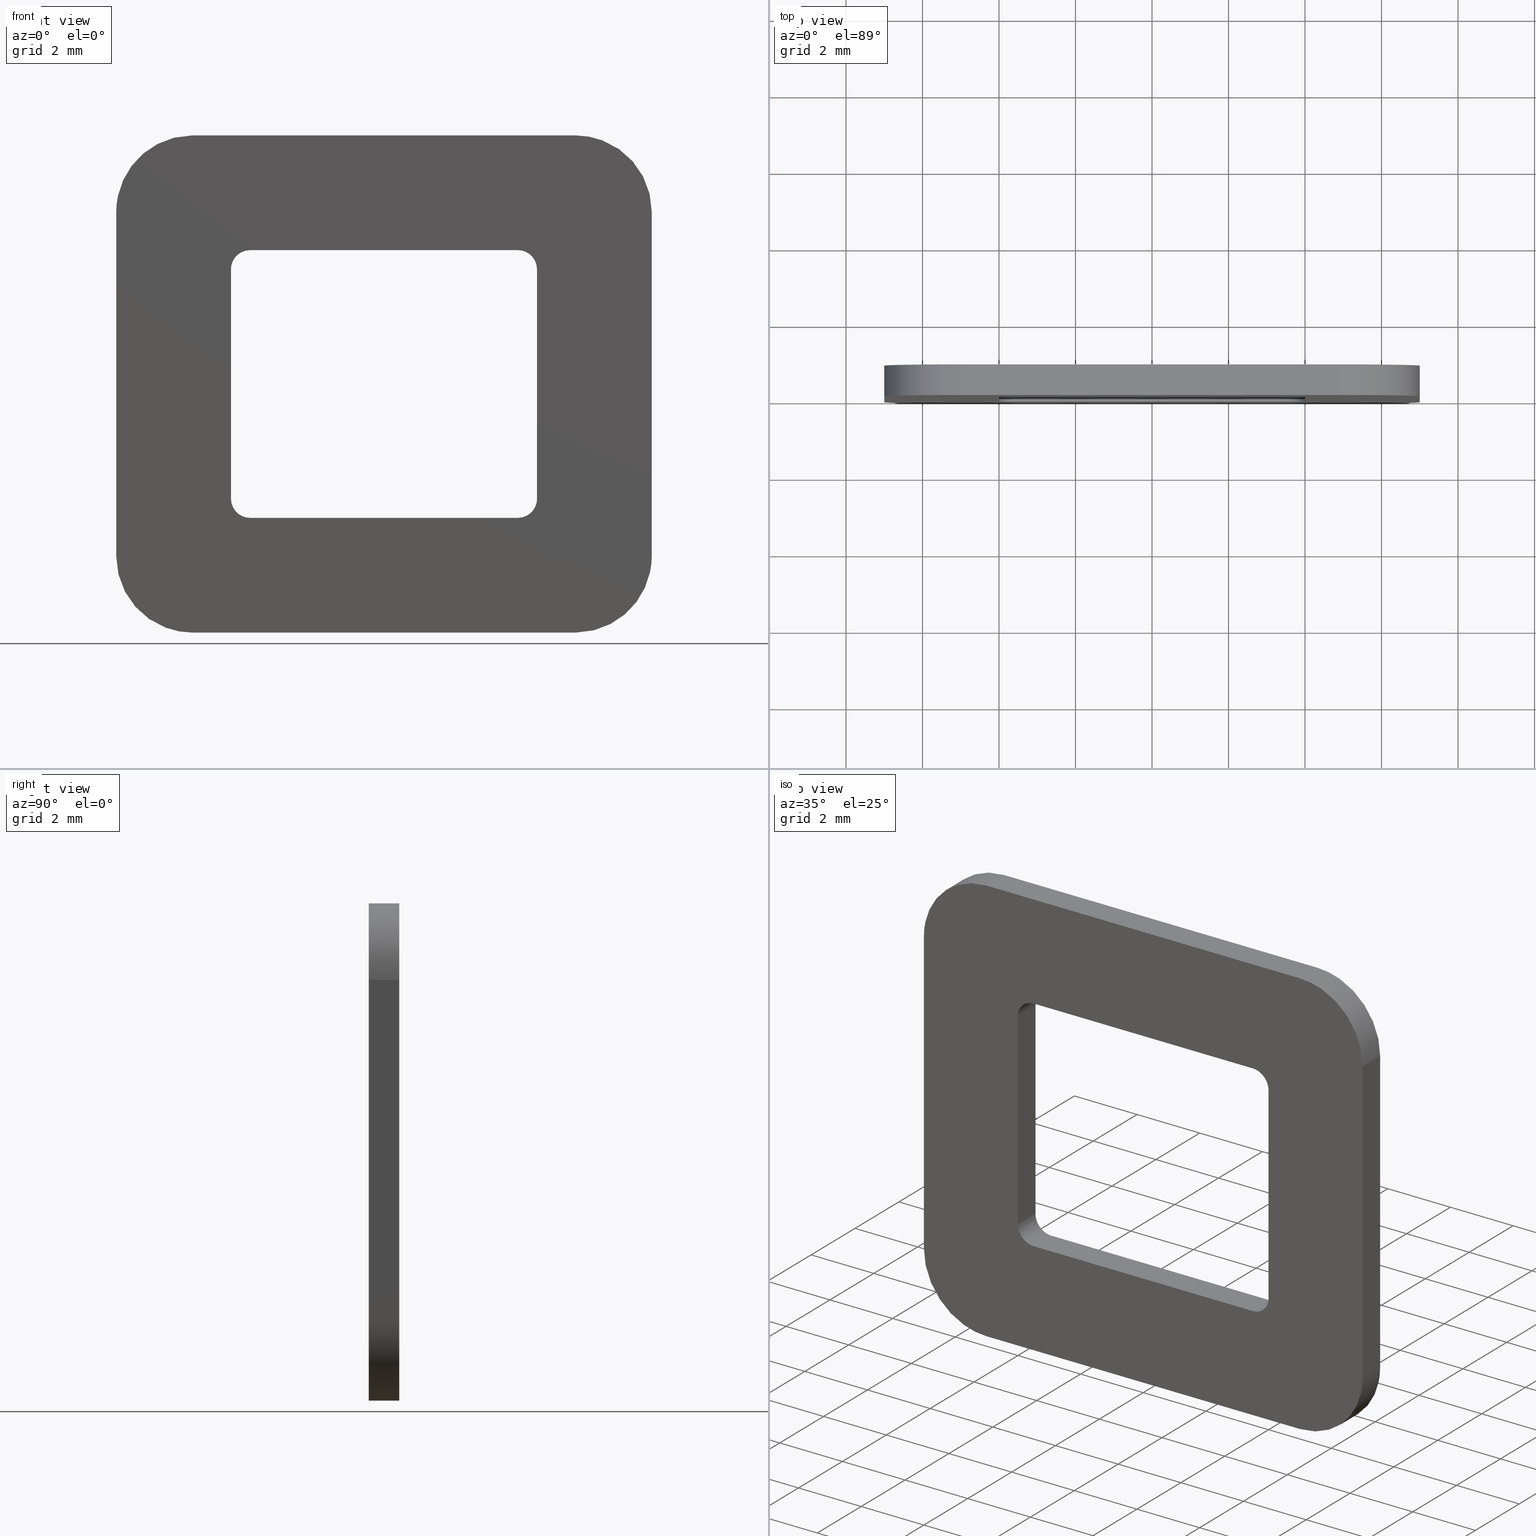
[diagram: canonical four-view strip — front | top / right | iso, engineering-drawing reading convention]
A machine part, canonical four-view strip (front | top / right | iso — engineering-drawing reading convention). The complete STEP part file that produces these views, byte-faithful:
ISO-10303-21;
HEADER;
/****************************************************************
 * Generated by software with PDE/Lib inside                    *
 * PDElib Version 4.4.1-0003, patched  Thursday August 19 11:58 *
 * International Technegroup Inc. (www.iti-oh.com)              *
 ****************************************************************/
FILE_DESCRIPTION((''),'2;1');
FILE_NAME('','2005-07-15T15:33:39',(''),(''),'','CADfix','');
FILE_SCHEMA(('AUTOMOTIVE_DESIGN'));
ENDSEC;
DATA;
#5=APPLICATION_CONTEXT('automotive design');
#6=APPLICATION_PROTOCOL_DEFINITION('Draft International Standard','automotive_design',1998,#5);
#7=PRODUCT_CONTEXT('None',#5,'mechanical');
#8=PRODUCT('spacer','','None',(#7));
#9=PRODUCT_RELATED_PRODUCT_CATEGORY('part','description',(#8));
#10=PRODUCT_DEFINITION_FORMATION('None','None',#8);
#11=PRODUCT_DEFINITION_CONTEXT('part definition',#5,'design');
#12=PRODUCT_DEFINITION('None','None',#10,#11);
#18=(NAMED_UNIT(*)PLANE_ANGLE_UNIT()SI_UNIT($,.RADIAN.));
#19=DIMENSIONAL_EXPONENTS(0.0,0.0,0.0,0.0,0.0,0.0,0.0);
#20=PLANE_ANGLE_MEASURE_WITH_UNIT(PLANE_ANGLE_MEASURE(0.017453292500000),#18);
#24=(CONVERSION_BASED_UNIT('DEGREE',#20)NAMED_UNIT(#19)PLANE_ANGLE_UNIT());
#28=(NAMED_UNIT(*)SI_UNIT($,.STERADIAN.)SOLID_ANGLE_UNIT());
#32=(LENGTH_UNIT()NAMED_UNIT(*)SI_UNIT(.MILLI.,.METRE.));
#34=UNCERTAINTY_MEASURE_WITH_UNIT(LENGTH_MEASURE(0.001000000000000),#32,'DISTANCE_ACCURACY_VALUE','');
#36=(GEOMETRIC_REPRESENTATION_CONTEXT(3)GLOBAL_UNCERTAINTY_ASSIGNED_CONTEXT((#34))GLOBAL_UNIT_ASSIGNED_CONTEXT((#24,#28,#32))REPRESENTATION_CONTEXT('None','None'));
#37=AXIS2_PLACEMENT_3D('',#38,#39,#40);
#38=CARTESIAN_POINT('',(0.0,0.0,0.0));
#39=DIRECTION('',(0.0,0.0,1.0));
#40=DIRECTION('',(1.0,0.0,0.0));
#41=ADVANCED_BREP_SHAPE_REPRESENTATION('',(#37,#761),#36);
#42=PRODUCT_DEFINITION_SHAPE('','',#12);
#43=SHAPE_DEFINITION_REPRESENTATION(#42,#41);
#44=CARTESIAN_POINT('',(-3.849649985124956,-0.039960148299441,3.500000000000000));
#45=CARTESIAN_POINT('',(3.849650146699670,-0.039960148299441,3.500000000000000));
#46=CARTESIAN_POINT('',(-3.849649985124956,0.839963169757243,3.500000000000000));
#47=CARTESIAN_POINT('',(3.849650146699670,0.839963169757243,3.500000000000000));
#48=B_SPLINE_SURFACE_WITH_KNOTS('',1,1,((#44,#46),(#45,#47)),.UNSPECIFIED.,.F.,.F.,.U.,(2,2),(2,2),(0.0,7.699300131824627),(0.041708334948495,0.958291687403247),.UNSPECIFIED.);
#49=CARTESIAN_POINT('',(3.499999973820085,0.0,3.500000000000000));
#50=VERTEX_POINT('',#49);
#51=CARTESIAN_POINT('',(-3.500000000000000,0.0,3.500000000000000));
#52=VERTEX_POINT('',#51);
#53=CARTESIAN_POINT('',(3.499999973820085,0.0,3.500000000000000));
#54=CARTESIAN_POINT('',(-3.500000000000000,0.0,3.500000000000000));
#55=QUASI_UNIFORM_CURVE('',1,(#53,#54),.UNSPECIFIED.,.F.,.U.);
#56=EDGE_CURVE('',#50,#52,#55,.T.);
#57=ORIENTED_EDGE('',*,*,#56,.T.);
#58=CARTESIAN_POINT('',(-3.500000000000000,0.800003000000000,3.500000000000000));
#59=VERTEX_POINT('',#58);
#60=CARTESIAN_POINT('',(-3.500000000000000,0.800003000000000,3.500000000000000));
#61=CARTESIAN_POINT('',(-3.500000000000000,0.0,3.500000000000000));
#62=QUASI_UNIFORM_CURVE('',1,(#60,#61),.UNSPECIFIED.,.F.,.U.);
#63=EDGE_CURVE('',#59,#52,#62,.T.);
#64=ORIENTED_EDGE('',*,*,#63,.F.);
#65=CARTESIAN_POINT('',(3.499999973820085,0.800003000000049,3.500000000000000));
#66=VERTEX_POINT('',#65);
#67=CARTESIAN_POINT('',(3.499999973820085,0.800003000000049,3.500000000000000));
#68=CARTESIAN_POINT('',(-3.500000000000000,0.800003000000000,3.500000000000000));
#69=QUASI_UNIFORM_CURVE('',1,(#67,#68),.UNSPECIFIED.,.F.,.U.);
#70=EDGE_CURVE('',#66,#59,#69,.T.);
#71=ORIENTED_EDGE('',*,*,#70,.F.);
#72=CARTESIAN_POINT('',(3.499999973820085,0.800003000000049,3.500000000000000));
#73=CARTESIAN_POINT('',(3.499999973820085,0.0,3.500000000000000));
#74=QUASI_UNIFORM_CURVE('',1,(#72,#73),.UNSPECIFIED.,.F.,.U.);
#75=EDGE_CURVE('',#66,#50,#74,.T.);
#76=ORIENTED_EDGE('',*,*,#75,.T.);
#77=EDGE_LOOP('',(#57,#64,#71,#76));
#78=FACE_OUTER_BOUND('',#77,.T.);
#79=ADVANCED_FACE('',(#78),#48,.F.);
#80=CARTESIAN_POINT('',(3.478190306317332,0.820003075000050,3.499524110790929));
#81=CARTESIAN_POINT('',(3.478190306317332,-0.020500076875001,3.499524110790929));
#82=CARTESIAN_POINT('',(4.038030132229519,0.820003075000050,3.523967245467991));
#83=CARTESIAN_POINT('',(4.038030132229519,-0.020500076875001,3.523967245467991));
#84=CARTESIAN_POINT('',(3.998771456615960,0.820003075000050,2.964970953978237));
#85=CARTESIAN_POINT('',(3.998771456615960,-0.020500076875001,2.964970953978237));
#93=(BOUNDED_SURFACE()B_SPLINE_SURFACE(1,2,((#80,#82,#84),(#81,#83,#85)),.UNSPECIFIED.,.F.,.F.,.U.)B_SPLINE_SURFACE_WITH_KNOTS((2,2),(3,3),(0.0,1.0),(0.0,0.994386594966985),.UNSPECIFIED.)GEOMETRIC_REPRESENTATION_ITEM()RATIONAL_B_SPLINE_SURFACE(((1.0,0.664513898535122,0.996233561259061),(1.0,0.664513898535122,0.996233561259061)))REPRESENTATION_ITEM('')SURFACE());
#94=CARTESIAN_POINT('',(4.0,0.0,3.0));
#95=VERTEX_POINT('',#94);
#96=CARTESIAN_POINT('',(4.0,0.0,3.0));
#97=CARTESIAN_POINT('',(4.000000000000001,0.0,3.207106788854468));
#98=CARTESIAN_POINT('',(3.853553381337276,0.0,3.353553399849271));
#99=CARTESIAN_POINT('',(3.707106762674552,0.0,3.500000010844076));
#100=CARTESIAN_POINT('',(3.499999973820085,0.0,3.500000000000000));
#108=(BOUNDED_CURVE()B_SPLINE_CURVE(2,(#96,#97,#98,#99,#100),.UNSPECIFIED.,.F.,.U.)B_SPLINE_CURVE_WITH_KNOTS((3,2,3),(0.0,0.500000000000000,1.0),.UNSPECIFIED.)CURVE()GEOMETRIC_REPRESENTATION_ITEM()RATIONAL_B_SPLINE_CURVE((1.0,0.923879527501977,1.0,0.923879527501977,1.0))REPRESENTATION_ITEM(''));
#109=EDGE_CURVE('',#95,#50,#108,.T.);
#110=ORIENTED_EDGE('',*,*,#109,.T.);
#111=ORIENTED_EDGE('',*,*,#75,.F.);
#112=CARTESIAN_POINT('',(4.0,0.800003000000049,3.0));
#113=VERTEX_POINT('',#112);
#114=CARTESIAN_POINT('',(4.0,0.800003000000049,3.0));
#115=CARTESIAN_POINT('',(4.000000000000001,0.800003000000049,3.207106788854468));
#116=CARTESIAN_POINT('',(3.853553381337276,0.800003000000049,3.353553399849271));
#117=CARTESIAN_POINT('',(3.707106762674552,0.800003000000049,3.500000010844076));
#118=CARTESIAN_POINT('',(3.499999973820085,0.800003000000049,3.500000000000000));
#126=(BOUNDED_CURVE()B_SPLINE_CURVE(2,(#114,#115,#116,#117,#118),.UNSPECIFIED.,.F.,.U.)B_SPLINE_CURVE_WITH_KNOTS((3,2,3),(0.0,0.500000000000000,1.0),.UNSPECIFIED.)CURVE()GEOMETRIC_REPRESENTATION_ITEM()RATIONAL_B_SPLINE_CURVE((1.0,0.923879527501977,1.0,0.923879527501977,1.0))REPRESENTATION_ITEM(''));
#127=EDGE_CURVE('',#113,#66,#126,.T.);
#128=ORIENTED_EDGE('',*,*,#127,.F.);
#129=CARTESIAN_POINT('',(4.0,0.800003000000049,3.0));
#130=CARTESIAN_POINT('',(4.0,0.0,3.0));
#131=QUASI_UNIFORM_CURVE('',1,(#129,#130),.UNSPECIFIED.,.F.,.U.);
#132=EDGE_CURVE('',#113,#95,#131,.T.);
#133=ORIENTED_EDGE('',*,*,#132,.T.);
#134=EDGE_LOOP('',(#110,#111,#128,#133));
#135=FACE_OUTER_BOUND('',#134,.T.);
#136=ADVANCED_FACE('',(#135),#93,.F.);
#137=CARTESIAN_POINT('',(4.0,-0.039960148299441,3.299699988370836));
#138=CARTESIAN_POINT('',(4.0,-0.039960148299441,-3.299700149303377));
#139=CARTESIAN_POINT('',(4.0,0.839963169757243,3.299699988370836));
#140=CARTESIAN_POINT('',(4.0,0.839963169757243,-3.299700149303377));
#141=B_SPLINE_SURFACE_WITH_KNOTS('',1,1,((#137,#139),(#138,#140)),.UNSPECIFIED.,.F.,.F.,.U.,(2,2),(2,2),(0.0,6.599400137674213),(0.041708334948495,0.958291687403247),.UNSPECIFIED.);
#142=CARTESIAN_POINT('',(4.0,0.0,-3.0));
#143=VERTEX_POINT('',#142);
#144=CARTESIAN_POINT('',(4.0,0.0,-3.0));
#145=CARTESIAN_POINT('',(4.0,0.0,3.0));
#146=QUASI_UNIFORM_CURVE('',1,(#144,#145),.UNSPECIFIED.,.F.,.U.);
#147=EDGE_CURVE('',#143,#95,#146,.T.);
#148=ORIENTED_EDGE('',*,*,#147,.T.);
#149=ORIENTED_EDGE('',*,*,#132,.F.);
#150=CARTESIAN_POINT('',(4.0,0.800003000000049,-3.0));
#151=VERTEX_POINT('',#150);
#152=CARTESIAN_POINT('',(4.0,0.800003000000049,-3.0));
#153=CARTESIAN_POINT('',(4.0,0.800003000000049,3.0));
#154=QUASI_UNIFORM_CURVE('',1,(#152,#153),.UNSPECIFIED.,.F.,.U.);
#155=EDGE_CURVE('',#151,#113,#154,.T.);
#156=ORIENTED_EDGE('',*,*,#155,.F.);
#157=CARTESIAN_POINT('',(4.0,0.800003000000049,-3.0));
#158=CARTESIAN_POINT('',(4.0,0.0,-3.0));
#159=QUASI_UNIFORM_CURVE('',1,(#157,#158),.UNSPECIFIED.,.F.,.U.);
#160=EDGE_CURVE('',#151,#143,#159,.T.);
#161=ORIENTED_EDGE('',*,*,#160,.T.);
#162=EDGE_LOOP('',(#148,#149,#156,#161));
#163=FACE_OUTER_BOUND('',#162,.T.);
#164=ADVANCED_FACE('',(#163),#141,.F.);
#165=CARTESIAN_POINT('',(3.999524110790929,0.820003075000050,-2.978190306317332));
#166=CARTESIAN_POINT('',(3.999524110790929,-0.020500076875001,-2.978190306317332));
#167=CARTESIAN_POINT('',(4.023967245467992,0.820003075000050,-3.538030132229517));
#168=CARTESIAN_POINT('',(4.023967245467992,-0.020500076875001,-3.538030132229517));
#169=CARTESIAN_POINT('',(3.464970953978237,0.820003075000050,-3.498771456615957));
#170=CARTESIAN_POINT('',(3.464970953978237,-0.020500076875001,-3.498771456615957));
#178=(BOUNDED_SURFACE()B_SPLINE_SURFACE(1,2,((#165,#167,#169),(#166,#168,#170)),.UNSPECIFIED.,.F.,.F.,.U.)B_SPLINE_SURFACE_WITH_KNOTS((2,2),(3,3),(0.0,1.0),(0.0,0.994386594966985),.UNSPECIFIED.)GEOMETRIC_REPRESENTATION_ITEM()RATIONAL_B_SPLINE_SURFACE(((1.0,0.664513898535122,0.996233561259061),(1.0,0.664513898535122,0.996233561259061)))REPRESENTATION_ITEM('')SURFACE());
#179=CARTESIAN_POINT('',(3.500000000000000,0.0,-3.500000000000000));
#180=VERTEX_POINT('',#179);
#181=CARTESIAN_POINT('',(3.500000000000000,0.0,-3.500000000000000));
#182=CARTESIAN_POINT('',(4.000000000000000,0.0,-3.499999999999999));
#183=CARTESIAN_POINT('',(4.0,0.0,-3.0));
#191=(BOUNDED_CURVE()B_SPLINE_CURVE(2,(#181,#182,#183),.UNSPECIFIED.,.F.,.U.)CURVE()GEOMETRIC_REPRESENTATION_ITEM()QUASI_UNIFORM_CURVE()RATIONAL_B_SPLINE_CURVE((1.0,0.707106781186548,1.0))REPRESENTATION_ITEM(''));
#192=EDGE_CURVE('',#180,#143,#191,.T.);
#193=ORIENTED_EDGE('',*,*,#192,.T.);
#194=ORIENTED_EDGE('',*,*,#160,.F.);
#195=CARTESIAN_POINT('',(3.500000000000000,0.800003000000049,-3.500000000000000));
#196=VERTEX_POINT('',#195);
#197=CARTESIAN_POINT('',(3.500000000000000,0.800003000000049,-3.500000000000000));
#198=CARTESIAN_POINT('',(4.000000000000000,0.800003000000049,-3.499999999999999));
#199=CARTESIAN_POINT('',(4.0,0.800003000000049,-3.0));
#207=(BOUNDED_CURVE()B_SPLINE_CURVE(2,(#197,#198,#199),.UNSPECIFIED.,.F.,.U.)CURVE()GEOMETRIC_REPRESENTATION_ITEM()QUASI_UNIFORM_CURVE()RATIONAL_B_SPLINE_CURVE((1.0,0.707106781186548,1.0))REPRESENTATION_ITEM(''));
#208=EDGE_CURVE('',#196,#151,#207,.T.);
#209=ORIENTED_EDGE('',*,*,#208,.F.);
#210=CARTESIAN_POINT('',(3.500000000000000,0.800003000000049,-3.500000000000000));
#211=CARTESIAN_POINT('',(3.500000000000000,0.0,-3.500000000000000));
#212=QUASI_UNIFORM_CURVE('',1,(#210,#211),.UNSPECIFIED.,.F.,.U.);
#213=EDGE_CURVE('',#196,#180,#212,.T.);
#214=ORIENTED_EDGE('',*,*,#213,.T.);
#215=EDGE_LOOP('',(#193,#194,#209,#214));
#216=FACE_OUTER_BOUND('',#215,.T.);
#217=ADVANCED_FACE('',(#216),#178,.F.);
#218=CARTESIAN_POINT('',(3.849649985996746,-0.039960148299441,-3.500000000000000));
#219=CARTESIAN_POINT('',(-3.849650165024716,-0.039960148299441,-3.500000000000000));
#220=CARTESIAN_POINT('',(3.849649985996746,0.839963169757243,-3.500000000000000));
#221=CARTESIAN_POINT('',(-3.849650165024716,0.839963169757243,-3.500000000000000));
#222=B_SPLINE_SURFACE_WITH_KNOTS('',1,1,((#218,#220),(#219,#221)),.UNSPECIFIED.,.F.,.F.,.U.,(2,2),(2,2),(0.0,7.699300151021462),(0.041708334948495,0.958291687403247),.UNSPECIFIED.);
#223=CARTESIAN_POINT('',(-3.499999991273340,0.0,-3.500000000000000));
#224=VERTEX_POINT('',#223);
#225=CARTESIAN_POINT('',(-3.499999991273340,0.0,-3.500000000000000));
#226=CARTESIAN_POINT('',(3.500000000000000,0.0,-3.500000000000000));
#227=QUASI_UNIFORM_CURVE('',1,(#225,#226),.UNSPECIFIED.,.F.,.U.);
#228=EDGE_CURVE('',#224,#180,#227,.T.);
#229=ORIENTED_EDGE('',*,*,#228,.T.);
#230=ORIENTED_EDGE('',*,*,#213,.F.);
#231=CARTESIAN_POINT('',(-3.499999991273340,0.800003000000049,-3.500000000000000));
#232=VERTEX_POINT('',#231);
#233=CARTESIAN_POINT('',(-3.499999991273340,0.800003000000049,-3.500000000000000));
#234=CARTESIAN_POINT('',(3.500000000000000,0.800003000000049,-3.500000000000000));
#235=QUASI_UNIFORM_CURVE('',1,(#233,#234),.UNSPECIFIED.,.F.,.U.);
#236=EDGE_CURVE('',#232,#196,#235,.T.);
#237=ORIENTED_EDGE('',*,*,#236,.F.);
#238=CARTESIAN_POINT('',(-3.499999991273340,0.800003000000049,-3.500000000000000));
#239=CARTESIAN_POINT('',(-3.499999991273340,0.0,-3.500000000000000));
#240=QUASI_UNIFORM_CURVE('',1,(#238,#239),.UNSPECIFIED.,.F.,.U.);
#241=EDGE_CURVE('',#232,#224,#240,.T.);
#242=ORIENTED_EDGE('',*,*,#241,.T.);
#243=EDGE_LOOP('',(#229,#230,#237,#242));
#244=FACE_OUTER_BOUND('',#243,.T.);
#245=ADVANCED_FACE('',(#244),#222,.F.);
#246=CARTESIAN_POINT('',(-3.478190306317332,0.820003075000050,-3.499524110790929));
#247=CARTESIAN_POINT('',(-3.478190306317332,-0.020500076875001,-3.499524110790929));
#248=CARTESIAN_POINT('',(-4.038030132229519,0.820003075000050,-3.523967245467991));
#249=CARTESIAN_POINT('',(-4.038030132229519,-0.020500076875001,-3.523967245467991));
#250=CARTESIAN_POINT('',(-3.998771456615960,0.820003075000050,-2.964970953978237));
#251=CARTESIAN_POINT('',(-3.998771456615960,-0.020500076875001,-2.964970953978237));
#259=(BOUNDED_SURFACE()B_SPLINE_SURFACE(1,2,((#246,#248,#250),(#247,#249,#251)),.UNSPECIFIED.,.F.,.F.,.U.)B_SPLINE_SURFACE_WITH_KNOTS((2,2),(3,3),(0.0,1.0),(0.0,0.994386594966985),.UNSPECIFIED.)GEOMETRIC_REPRESENTATION_ITEM()RATIONAL_B_SPLINE_SURFACE(((1.0,0.664513898535122,0.996233561259061),(1.0,0.664513898535122,0.996233561259061)))REPRESENTATION_ITEM('')SURFACE());
#260=CARTESIAN_POINT('',(-4.0,0.0,-3.0));
#261=VERTEX_POINT('',#260);
#262=CARTESIAN_POINT('',(-4.0,0.0,-3.0));
#263=CARTESIAN_POINT('',(-4.0,0.0,-3.207106783742527));
#264=CARTESIAN_POINT('',(-3.853553387507934,0.0,-3.353553393678614));
#265=CARTESIAN_POINT('',(-3.707106775015868,0.0,-3.500000003614701));
#266=CARTESIAN_POINT('',(-3.499999991273340,0.0,-3.500000000000000));
#274=(BOUNDED_CURVE()B_SPLINE_CURVE(2,(#262,#263,#264,#265,#266),.UNSPECIFIED.,.F.,.U.)B_SPLINE_CURVE_WITH_KNOTS((3,2,3),(0.0,0.500000000000000,1.0),.UNSPECIFIED.)CURVE()GEOMETRIC_REPRESENTATION_ITEM()RATIONAL_B_SPLINE_CURVE((1.0,0.923879530841513,1.0,0.923879530841513,1.0))REPRESENTATION_ITEM(''));
#275=EDGE_CURVE('',#261,#224,#274,.T.);
#276=ORIENTED_EDGE('',*,*,#275,.T.);
#277=ORIENTED_EDGE('',*,*,#241,.F.);
#278=CARTESIAN_POINT('',(-4.0,0.800003000000049,-3.0));
#279=VERTEX_POINT('',#278);
#280=CARTESIAN_POINT('',(-4.0,0.800003000000049,-3.0));
#281=CARTESIAN_POINT('',(-4.0,0.800003000000049,-3.207106783742527));
#282=CARTESIAN_POINT('',(-3.853553387507934,0.800003000000049,-3.353553393678614));
#283=CARTESIAN_POINT('',(-3.707106775015868,0.800003000000049,-3.500000003614701));
#284=CARTESIAN_POINT('',(-3.499999991273340,0.800003000000049,-3.500000000000000));
#292=(BOUNDED_CURVE()B_SPLINE_CURVE(2,(#280,#281,#282,#283,#284),.UNSPECIFIED.,.F.,.U.)B_SPLINE_CURVE_WITH_KNOTS((3,2,3),(0.0,0.500000000000000,1.0),.UNSPECIFIED.)CURVE()GEOMETRIC_REPRESENTATION_ITEM()RATIONAL_B_SPLINE_CURVE((1.0,0.923879530841513,1.0,0.923879530841513,1.0))REPRESENTATION_ITEM(''));
#293=EDGE_CURVE('',#279,#232,#292,.T.);
#294=ORIENTED_EDGE('',*,*,#293,.F.);
#295=CARTESIAN_POINT('',(-4.0,0.800003000000049,-3.0));
#296=CARTESIAN_POINT('',(-4.0,0.0,-3.0));
#297=QUASI_UNIFORM_CURVE('',1,(#295,#296),.UNSPECIFIED.,.F.,.U.);
#298=EDGE_CURVE('',#279,#261,#297,.T.);
#299=ORIENTED_EDGE('',*,*,#298,.T.);
#300=EDGE_LOOP('',(#276,#277,#294,#299));
#301=FACE_OUTER_BOUND('',#300,.T.);
#302=ADVANCED_FACE('',(#301),#259,.F.);
#303=CARTESIAN_POINT('',(-4.0,-0.039960148299441,-3.299699988370836));
#304=CARTESIAN_POINT('',(-4.0,-0.039960148299441,3.299700149303377));
#305=CARTESIAN_POINT('',(-4.0,0.839963169757243,-3.299699988370836));
#306=CARTESIAN_POINT('',(-4.0,0.839963169757243,3.299700149303377));
#307=B_SPLINE_SURFACE_WITH_KNOTS('',1,1,((#303,#305),(#304,#306)),.UNSPECIFIED.,.F.,.F.,.U.,(2,2),(2,2),(0.0,6.599400137674213),(0.041708334948495,0.958291687403247),.UNSPECIFIED.);
#308=CARTESIAN_POINT('',(-4.0,0.0,3.0));
#309=VERTEX_POINT('',#308);
#310=CARTESIAN_POINT('',(-4.0,0.0,3.0));
#311=CARTESIAN_POINT('',(-4.0,0.0,-3.0));
#312=QUASI_UNIFORM_CURVE('',1,(#310,#311),.UNSPECIFIED.,.F.,.U.);
#313=EDGE_CURVE('',#309,#261,#312,.T.);
#314=ORIENTED_EDGE('',*,*,#313,.T.);
#315=ORIENTED_EDGE('',*,*,#298,.F.);
#316=CARTESIAN_POINT('',(-4.0,0.800003000000049,3.0));
#317=VERTEX_POINT('',#316);
#318=CARTESIAN_POINT('',(-4.0,0.800003000000049,3.0));
#319=CARTESIAN_POINT('',(-4.0,0.800003000000049,-3.0));
#320=QUASI_UNIFORM_CURVE('',1,(#318,#319),.UNSPECIFIED.,.F.,.U.);
#321=EDGE_CURVE('',#317,#279,#320,.T.);
#322=ORIENTED_EDGE('',*,*,#321,.F.);
#323=CARTESIAN_POINT('',(-4.0,0.800003000000049,3.0));
#324=CARTESIAN_POINT('',(-4.0,0.0,3.0));
#325=QUASI_UNIFORM_CURVE('',1,(#323,#324),.UNSPECIFIED.,.F.,.U.);
#326=EDGE_CURVE('',#317,#309,#325,.T.);
#327=ORIENTED_EDGE('',*,*,#326,.T.);
#328=EDGE_LOOP('',(#314,#315,#322,#327));
#329=FACE_OUTER_BOUND('',#328,.T.);
#330=ADVANCED_FACE('',(#329),#307,.F.);
#331=CARTESIAN_POINT('',(-3.999524110790929,0.820003075000050,2.978190306317332));
#332=CARTESIAN_POINT('',(-3.999524110790929,-0.020500076875001,2.978190306317332));
#333=CARTESIAN_POINT('',(-4.023967245467992,0.820003075000050,3.538030132229517));
#334=CARTESIAN_POINT('',(-4.023967245467992,-0.020500076875001,3.538030132229517));
#335=CARTESIAN_POINT('',(-3.464970953978237,0.820003075000050,3.498771456615957));
#336=CARTESIAN_POINT('',(-3.464970953978237,-0.020500076875001,3.498771456615957));
#344=(BOUNDED_SURFACE()B_SPLINE_SURFACE(1,2,((#331,#333,#335),(#332,#334,#336)),.UNSPECIFIED.,.F.,.F.,.U.)B_SPLINE_SURFACE_WITH_KNOTS((2,2),(3,3),(0.0,1.0),(0.0,0.994386594966985),.UNSPECIFIED.)GEOMETRIC_REPRESENTATION_ITEM()RATIONAL_B_SPLINE_SURFACE(((1.0,0.664513898535122,0.996233561259061),(1.0,0.664513898535122,0.996233561259061)))REPRESENTATION_ITEM('')SURFACE());
#345=CARTESIAN_POINT('',(-3.500000000000000,0.0,3.500000000000000));
#346=CARTESIAN_POINT('',(-4.000000000000000,0.0,3.499999999999999));
#347=CARTESIAN_POINT('',(-4.0,0.0,3.0));
#355=(BOUNDED_CURVE()B_SPLINE_CURVE(2,(#345,#346,#347),.UNSPECIFIED.,.F.,.U.)CURVE()GEOMETRIC_REPRESENTATION_ITEM()QUASI_UNIFORM_CURVE()RATIONAL_B_SPLINE_CURVE((1.0,0.707106781186548,1.0))REPRESENTATION_ITEM(''));
#356=EDGE_CURVE('',#52,#309,#355,.T.);
#357=ORIENTED_EDGE('',*,*,#356,.T.);
#358=ORIENTED_EDGE('',*,*,#326,.F.);
#359=CARTESIAN_POINT('',(-3.500000000000000,0.800003000000000,3.500000000000000));
#360=CARTESIAN_POINT('',(-4.000000000000000,0.800003000000049,3.499999999999999));
#361=CARTESIAN_POINT('',(-4.0,0.800003000000049,3.0));
#369=(BOUNDED_CURVE()B_SPLINE_CURVE(2,(#359,#360,#361),.UNSPECIFIED.,.F.,.U.)CURVE()GEOMETRIC_REPRESENTATION_ITEM()QUASI_UNIFORM_CURVE()RATIONAL_B_SPLINE_CURVE((1.0,0.707106781186548,1.0))REPRESENTATION_ITEM(''));
#370=EDGE_CURVE('',#59,#317,#369,.T.);
#371=ORIENTED_EDGE('',*,*,#370,.F.);
#372=ORIENTED_EDGE('',*,*,#63,.T.);
#373=EDGE_LOOP('',(#357,#358,#371,#372));
#374=FACE_OUTER_BOUND('',#373,.T.);
#375=ADVANCED_FACE('',(#374),#344,.F.);
#376=CARTESIAN_POINT('',(-7.699299972865286,0.0,7.149349974803479));
#377=CARTESIAN_POINT('',(7.699300348374547,0.0,7.149349974803479));
#378=CARTESIAN_POINT('',(-7.699299972865286,0.0,-7.149350323490651));
#379=CARTESIAN_POINT('',(7.699300348374547,0.0,-7.149350323490651));
#380=B_SPLINE_SURFACE_WITH_KNOTS('',1,1,((#376,#378),(#377,#379)),.UNSPECIFIED.,.F.,.F.,.U.,(2,2),(2,2),(0.0,15.398600321239829),(0.0,14.298700298294129),.UNSPECIFIED.);
#381=CARTESIAN_POINT('',(-5.0,0.0,6.500000000000000));
#382=VERTEX_POINT('',#381);
#383=CARTESIAN_POINT('',(-7.0,0.0,4.500000000000000));
#384=VERTEX_POINT('',#383);
#385=CARTESIAN_POINT('',(-5.0,0.0,6.500000000000000));
#386=CARTESIAN_POINT('',(-6.999999999999999,0.0,6.500000000000001));
#387=CARTESIAN_POINT('',(-7.0,0.0,4.500000000000000));
#395=(BOUNDED_CURVE()B_SPLINE_CURVE(2,(#385,#386,#387),.UNSPECIFIED.,.F.,.U.)CURVE()GEOMETRIC_REPRESENTATION_ITEM()QUASI_UNIFORM_CURVE()RATIONAL_B_SPLINE_CURVE((1.0,0.707106781186548,1.0))REPRESENTATION_ITEM(''));
#396=EDGE_CURVE('',#382,#384,#395,.T.);
#397=ORIENTED_EDGE('',*,*,#396,.T.);
#398=CARTESIAN_POINT('',(-7.0,0.0,-4.500000000000000));
#399=VERTEX_POINT('',#398);
#400=CARTESIAN_POINT('',(-7.0,0.0,4.500000000000000));
#401=CARTESIAN_POINT('',(-7.0,0.0,-4.500000000000000));
#402=QUASI_UNIFORM_CURVE('',1,(#400,#401),.UNSPECIFIED.,.F.,.U.);
#403=EDGE_CURVE('',#384,#399,#402,.T.);
#404=ORIENTED_EDGE('',*,*,#403,.T.);
#405=CARTESIAN_POINT('',(-4.999999965093400,0.0,-6.500000000000000));
#406=VERTEX_POINT('',#405);
#407=CARTESIAN_POINT('',(-7.0,0.0,-4.500000000000000));
#408=CARTESIAN_POINT('',(-7.0,0.0,-5.328427134970096));
#409=CARTESIAN_POINT('',(-6.414213550031748,0.0,-5.914213574714442));
#410=CARTESIAN_POINT('',(-5.828427100063497,0.0,-6.500000014458787));
#411=CARTESIAN_POINT('',(-4.999999965093400,0.0,-6.499999999999999));
#419=(BOUNDED_CURVE()B_SPLINE_CURVE(2,(#407,#408,#409,#410,#411),.UNSPECIFIED.,.F.,.U.)B_SPLINE_CURVE_WITH_KNOTS((3,2,3),(0.0,0.500000000000000,1.0),.UNSPECIFIED.)CURVE()GEOMETRIC_REPRESENTATION_ITEM()RATIONAL_B_SPLINE_CURVE((1.0,0.923879530841515,1.0,0.923879530841515,1.0))REPRESENTATION_ITEM(''));
#420=EDGE_CURVE('',#399,#406,#419,.T.);
#421=ORIENTED_EDGE('',*,*,#420,.T.);
#422=CARTESIAN_POINT('',(5.0,0.0,-6.500000000000000));
#423=VERTEX_POINT('',#422);
#424=CARTESIAN_POINT('',(-4.999999965093400,0.0,-6.500000000000000));
#425=CARTESIAN_POINT('',(5.0,0.0,-6.500000000000000));
#426=QUASI_UNIFORM_CURVE('',1,(#424,#425),.UNSPECIFIED.,.F.,.U.);
#427=EDGE_CURVE('',#406,#423,#426,.T.);
#428=ORIENTED_EDGE('',*,*,#427,.T.);
#429=CARTESIAN_POINT('',(7.0,0.0,-4.500000000000000));
#430=VERTEX_POINT('',#429);
#431=CARTESIAN_POINT('',(5.0,0.0,-6.500000000000000));
#432=CARTESIAN_POINT('',(6.999999999999999,0.0,-6.500000000000001));
#433=CARTESIAN_POINT('',(7.0,0.0,-4.500000000000000));
#441=(BOUNDED_CURVE()B_SPLINE_CURVE(2,(#431,#432,#433),.UNSPECIFIED.,.F.,.U.)CURVE()GEOMETRIC_REPRESENTATION_ITEM()QUASI_UNIFORM_CURVE()RATIONAL_B_SPLINE_CURVE((1.0,0.707106781186548,1.0))REPRESENTATION_ITEM(''));
#442=EDGE_CURVE('',#423,#430,#441,.T.);
#443=ORIENTED_EDGE('',*,*,#442,.T.);
#444=CARTESIAN_POINT('',(7.0,0.0,4.500000000000000));
#445=VERTEX_POINT('',#444);
#446=CARTESIAN_POINT('',(7.0,0.0,-4.500000000000000));
#447=CARTESIAN_POINT('',(7.0,0.0,4.500000000000000));
#448=QUASI_UNIFORM_CURVE('',1,(#446,#447),.UNSPECIFIED.,.F.,.U.);
#449=EDGE_CURVE('',#430,#445,#448,.T.);
#450=ORIENTED_EDGE('',*,*,#449,.T.);
#451=CARTESIAN_POINT('',(4.999999895280270,0.0,6.500000000000000));
#452=VERTEX_POINT('',#451);
#453=CARTESIAN_POINT('',(7.0,0.0,4.500000000000000));
#454=CARTESIAN_POINT('',(7.000000000000001,0.0,5.328427155417889));
#455=CARTESIAN_POINT('',(6.414213525349081,0.0,5.914213599397109));
#456=CARTESIAN_POINT('',(5.828427050698159,0.0,6.500000043376331));
#457=CARTESIAN_POINT('',(4.999999895280271,0.0,6.499999999999997));
#465=(BOUNDED_CURVE()B_SPLINE_CURVE(2,(#453,#454,#455,#456,#457),.UNSPECIFIED.,.F.,.U.)B_SPLINE_CURVE_WITH_KNOTS((3,2,3),(0.0,0.500000000000000,1.0),.UNSPECIFIED.)CURVE()GEOMETRIC_REPRESENTATION_ITEM()RATIONAL_B_SPLINE_CURVE((1.0,0.923879527501974,1.0,0.923879527501974,1.0))REPRESENTATION_ITEM(''));
#466=EDGE_CURVE('',#445,#452,#465,.T.);
#467=ORIENTED_EDGE('',*,*,#466,.T.);
#468=CARTESIAN_POINT('',(4.999999895280270,0.0,6.500000000000000));
#469=CARTESIAN_POINT('',(-5.0,0.0,6.500000000000000));
#470=QUASI_UNIFORM_CURVE('',1,(#468,#469),.UNSPECIFIED.,.F.,.U.);
#471=EDGE_CURVE('',#452,#382,#470,.T.);
#472=ORIENTED_EDGE('',*,*,#471,.T.);
#473=EDGE_LOOP('',(#397,#404,#421,#428,#443,#450,#467,#472));
#474=FACE_OUTER_BOUND('',#473,.T.);
#475=ORIENTED_EDGE('',*,*,#356,.F.);
#476=ORIENTED_EDGE('',*,*,#56,.F.);
#477=ORIENTED_EDGE('',*,*,#109,.F.);
#478=ORIENTED_EDGE('',*,*,#147,.F.);
#479=ORIENTED_EDGE('',*,*,#192,.F.);
#480=ORIENTED_EDGE('',*,*,#228,.F.);
#481=ORIENTED_EDGE('',*,*,#275,.F.);
#482=ORIENTED_EDGE('',*,*,#313,.F.);
#483=EDGE_LOOP('',(#475,#476,#477,#478,#479,#480,#481,#482));
#484=FACE_BOUND('',#483,.T.);
#485=ADVANCED_FACE('',(#474,#484),#380,.F.);
#486=CARTESIAN_POINT('',(-7.699299972865286,0.800003000000000,7.149349974803479));
#487=CARTESIAN_POINT('',(7.699300348374547,0.800003000000000,7.149349974803479));
#488=CARTESIAN_POINT('',(-7.699299972865286,0.800003000000000,-7.149350323490651));
#489=CARTESIAN_POINT('',(7.699300348374547,0.800003000000000,-7.149350323490651));
#490=B_SPLINE_SURFACE_WITH_KNOTS('',1,1,((#486,#488),(#487,#489)),.UNSPECIFIED.,.F.,.F.,.U.,(2,2),(2,2),(0.0,15.398600321239829),(0.0,14.298700298294129),.UNSPECIFIED.);
#491=CARTESIAN_POINT('',(-5.0,0.800003000000049,6.500000000000000));
#492=VERTEX_POINT('',#491);
#493=CARTESIAN_POINT('',(-7.0,0.800003000000049,4.500000000000000));
#494=VERTEX_POINT('',#493);
#495=CARTESIAN_POINT('',(-5.0,0.800003000000049,6.500000000000000));
#496=CARTESIAN_POINT('',(-6.999999999999999,0.800003000000049,6.500000000000001));
#497=CARTESIAN_POINT('',(-7.0,0.800003000000049,4.500000000000000));
#505=(BOUNDED_CURVE()B_SPLINE_CURVE(2,(#495,#496,#497),.UNSPECIFIED.,.F.,.U.)CURVE()GEOMETRIC_REPRESENTATION_ITEM()QUASI_UNIFORM_CURVE()RATIONAL_B_SPLINE_CURVE((1.0,0.707106781186548,1.0))REPRESENTATION_ITEM(''));
#506=EDGE_CURVE('',#492,#494,#505,.T.);
#507=ORIENTED_EDGE('',*,*,#506,.F.);
#508=CARTESIAN_POINT('',(4.999999895280270,0.800003000000049,6.500000000000000));
#509=VERTEX_POINT('',#508);
#510=CARTESIAN_POINT('',(4.999999895280270,0.800003000000049,6.500000000000000));
#511=CARTESIAN_POINT('',(-5.0,0.800003000000049,6.500000000000000));
#512=QUASI_UNIFORM_CURVE('',1,(#510,#511),.UNSPECIFIED.,.F.,.U.);
#513=EDGE_CURVE('',#509,#492,#512,.T.);
#514=ORIENTED_EDGE('',*,*,#513,.F.);
#515=CARTESIAN_POINT('',(7.0,0.800003000000049,4.500000000000000));
#516=VERTEX_POINT('',#515);
#517=CARTESIAN_POINT('',(7.0,0.800003000000049,4.500000000000000));
#518=CARTESIAN_POINT('',(7.000000000000001,0.800003000000049,5.328427155417889));
#519=CARTESIAN_POINT('',(6.414213525349081,0.800003000000049,5.914213599397109));
#520=CARTESIAN_POINT('',(5.828427050698159,0.800003000000049,6.500000043376331));
#521=CARTESIAN_POINT('',(4.999999895280271,0.800003000000049,6.499999999999997));
#529=(BOUNDED_CURVE()B_SPLINE_CURVE(2,(#517,#518,#519,#520,#521),.UNSPECIFIED.,.F.,.U.)B_SPLINE_CURVE_WITH_KNOTS((3,2,3),(0.0,0.500000000000000,1.0),.UNSPECIFIED.)CURVE()GEOMETRIC_REPRESENTATION_ITEM()RATIONAL_B_SPLINE_CURVE((1.0,0.923879527501974,1.0,0.923879527501974,1.0))REPRESENTATION_ITEM(''));
#530=EDGE_CURVE('',#516,#509,#529,.T.);
#531=ORIENTED_EDGE('',*,*,#530,.F.);
#532=CARTESIAN_POINT('',(7.0,0.800003000000049,-4.500000000000000));
#533=VERTEX_POINT('',#532);
#534=CARTESIAN_POINT('',(7.0,0.800003000000049,-4.500000000000000));
#535=CARTESIAN_POINT('',(7.0,0.800003000000049,4.500000000000000));
#536=QUASI_UNIFORM_CURVE('',1,(#534,#535),.UNSPECIFIED.,.F.,.U.);
#537=EDGE_CURVE('',#533,#516,#536,.T.);
#538=ORIENTED_EDGE('',*,*,#537,.F.);
#539=CARTESIAN_POINT('',(5.0,0.800003000000049,-6.500000000000000));
#540=VERTEX_POINT('',#539);
#541=CARTESIAN_POINT('',(5.0,0.800003000000049,-6.500000000000000));
#542=CARTESIAN_POINT('',(6.999999999999999,0.800003000000049,-6.500000000000001));
#543=CARTESIAN_POINT('',(7.0,0.800003000000049,-4.500000000000000));
#551=(BOUNDED_CURVE()B_SPLINE_CURVE(2,(#541,#542,#543),.UNSPECIFIED.,.F.,.U.)CURVE()GEOMETRIC_REPRESENTATION_ITEM()QUASI_UNIFORM_CURVE()RATIONAL_B_SPLINE_CURVE((1.0,0.707106781186548,1.0))REPRESENTATION_ITEM(''));
#552=EDGE_CURVE('',#540,#533,#551,.T.);
#553=ORIENTED_EDGE('',*,*,#552,.F.);
#554=CARTESIAN_POINT('',(-4.999999965093400,0.800003000000049,-6.500000000000000));
#555=VERTEX_POINT('',#554);
#556=CARTESIAN_POINT('',(-4.999999965093400,0.800003000000049,-6.500000000000000));
#557=CARTESIAN_POINT('',(5.0,0.800003000000049,-6.500000000000000));
#558=QUASI_UNIFORM_CURVE('',1,(#556,#557),.UNSPECIFIED.,.F.,.U.);
#559=EDGE_CURVE('',#555,#540,#558,.T.);
#560=ORIENTED_EDGE('',*,*,#559,.F.);
#561=CARTESIAN_POINT('',(-7.0,0.800003000000049,-4.500000000000000));
#562=VERTEX_POINT('',#561);
#563=CARTESIAN_POINT('',(-7.0,0.800003000000049,-4.500000000000000));
#564=CARTESIAN_POINT('',(-7.0,0.800003000000049,-5.328427134970096));
#565=CARTESIAN_POINT('',(-6.414213550031748,0.800003000000049,-5.914213574714442));
#566=CARTESIAN_POINT('',(-5.828427100063497,0.800003000000049,-6.500000014458787));
#567=CARTESIAN_POINT('',(-4.999999965093400,0.800003000000049,-6.499999999999999));
#575=(BOUNDED_CURVE()B_SPLINE_CURVE(2,(#563,#564,#565,#566,#567),.UNSPECIFIED.,.F.,.U.)B_SPLINE_CURVE_WITH_KNOTS((3,2,3),(0.0,0.500000000000000,1.0),.UNSPECIFIED.)CURVE()GEOMETRIC_REPRESENTATION_ITEM()RATIONAL_B_SPLINE_CURVE((1.0,0.923879530841515,1.0,0.923879530841515,1.0))REPRESENTATION_ITEM(''));
#576=EDGE_CURVE('',#562,#555,#575,.T.);
#577=ORIENTED_EDGE('',*,*,#576,.F.);
#578=CARTESIAN_POINT('',(-7.0,0.800003000000049,4.500000000000000));
#579=CARTESIAN_POINT('',(-7.0,0.800003000000049,-4.500000000000000));
#580=QUASI_UNIFORM_CURVE('',1,(#578,#579),.UNSPECIFIED.,.F.,.U.);
#581=EDGE_CURVE('',#494,#562,#580,.T.);
#582=ORIENTED_EDGE('',*,*,#581,.F.);
#583=EDGE_LOOP('',(#507,#514,#531,#538,#553,#560,#577,#582));
#584=FACE_OUTER_BOUND('',#583,.T.);
#585=ORIENTED_EDGE('',*,*,#70,.T.);
#586=ORIENTED_EDGE('',*,*,#370,.T.);
#587=ORIENTED_EDGE('',*,*,#321,.T.);
#588=ORIENTED_EDGE('',*,*,#293,.T.);
#589=ORIENTED_EDGE('',*,*,#236,.T.);
#590=ORIENTED_EDGE('',*,*,#208,.T.);
#591=ORIENTED_EDGE('',*,*,#155,.T.);
#592=ORIENTED_EDGE('',*,*,#127,.T.);
#593=EDGE_LOOP('',(#585,#586,#587,#588,#589,#590,#591,#592));
#594=FACE_BOUND('',#593,.T.);
#595=ADVANCED_FACE('',(#584,#594),#490,.T.);
#596=CARTESIAN_POINT('',(-5.499499975387309,-0.039960148299441,6.500000000000000));
#597=CARTESIAN_POINT('',(5.499500138888480,-0.039960148299441,6.500000000000000));
#598=CARTESIAN_POINT('',(-5.499499975387309,0.839963169757243,6.500000000000000));
#599=CARTESIAN_POINT('',(5.499500138888481,0.839963169757243,6.500000000000000));
#600=B_SPLINE_SURFACE_WITH_KNOTS('',1,1,((#596,#598),(#597,#599)),.UNSPECIFIED.,.F.,.F.,.U.,(2,2),(2,2),(0.0,10.999000114275789),(0.041708334948495,0.958291687403247),.UNSPECIFIED.);
#601=ORIENTED_EDGE('',*,*,#471,.F.);
#602=CARTESIAN_POINT('',(4.999999895280270,0.800003000000049,6.500000000000000));
#603=CARTESIAN_POINT('',(4.999999895280270,0.0,6.500000000000000));
#604=QUASI_UNIFORM_CURVE('',1,(#602,#603),.UNSPECIFIED.,.F.,.U.);
#605=EDGE_CURVE('',#509,#452,#604,.T.);
#606=ORIENTED_EDGE('',*,*,#605,.F.);
#607=ORIENTED_EDGE('',*,*,#513,.T.);
#608=CARTESIAN_POINT('',(-5.0,0.800003000000049,6.500000000000000));
#609=CARTESIAN_POINT('',(-5.0,0.0,6.500000000000000));
#610=QUASI_UNIFORM_CURVE('',1,(#608,#609),.UNSPECIFIED.,.F.,.U.);
#611=EDGE_CURVE('',#492,#382,#610,.T.);
#612=ORIENTED_EDGE('',*,*,#611,.T.);
#613=EDGE_LOOP('',(#601,#606,#607,#612));
#614=FACE_OUTER_BOUND('',#613,.T.);
#615=ADVANCED_FACE('',(#614),#600,.T.);
#616=CARTESIAN_POINT('',(4.912761225269327,0.820003075000050,6.498096443163715));
#617=CARTESIAN_POINT('',(4.912761225269327,-0.020500076875001,6.498096443163715));
#618=CARTESIAN_POINT('',(7.152120528918072,0.820003075000050,6.595868981871969));
#619=CARTESIAN_POINT('',(7.152120528918072,-0.020500076875001,6.595868981871969));
#620=CARTESIAN_POINT('',(6.995085826463835,0.820003075000050,4.359883815912956));
#621=CARTESIAN_POINT('',(6.995085826463835,-0.020500076875001,4.359883815912956));
#629=(BOUNDED_SURFACE()B_SPLINE_SURFACE(1,2,((#616,#618,#620),(#617,#619,#621)),.UNSPECIFIED.,.F.,.F.,.U.)B_SPLINE_SURFACE_WITH_KNOTS((2,2),(3,3),(0.0,1.0),(0.0,3.583485079683969),.UNSPECIFIED.)GEOMETRIC_REPRESENTATION_ITEM()RATIONAL_B_SPLINE_SURFACE(((1.0,0.664513898535122,0.996233561259061),(1.0,0.664513898535122,0.996233561259061)))REPRESENTATION_ITEM('')SURFACE());
#630=ORIENTED_EDGE('',*,*,#466,.F.);
#631=CARTESIAN_POINT('',(7.0,0.800003000000049,4.500000000000000));
#632=CARTESIAN_POINT('',(7.0,0.0,4.500000000000000));
#633=QUASI_UNIFORM_CURVE('',1,(#631,#632),.UNSPECIFIED.,.F.,.U.);
#634=EDGE_CURVE('',#516,#445,#633,.T.);
#635=ORIENTED_EDGE('',*,*,#634,.F.);
#636=ORIENTED_EDGE('',*,*,#530,.T.);
#637=ORIENTED_EDGE('',*,*,#605,.T.);
#638=EDGE_LOOP('',(#630,#635,#636,#637));
#639=FACE_OUTER_BOUND('',#638,.T.);
#640=ADVANCED_FACE('',(#639),#629,.T.);
#641=CARTESIAN_POINT('',(7.0,-0.039960148299441,4.949549982556253));
#642=CARTESIAN_POINT('',(7.0,-0.039960148299441,-4.949550223955065));
#643=CARTESIAN_POINT('',(7.0,0.839963169757243,4.949549982556253));
#644=CARTESIAN_POINT('',(7.0,0.839963169757243,-4.949550223955065));
#645=B_SPLINE_SURFACE_WITH_KNOTS('',1,1,((#641,#643),(#642,#644)),.UNSPECIFIED.,.F.,.F.,.U.,(2,2),(2,2),(0.0,9.899100206511317),(0.041708334948495,0.958291687403247),.UNSPECIFIED.);
#646=ORIENTED_EDGE('',*,*,#449,.F.);
#647=CARTESIAN_POINT('',(7.0,0.800003000000049,-4.500000000000000));
#648=CARTESIAN_POINT('',(7.0,0.0,-4.500000000000000));
#649=QUASI_UNIFORM_CURVE('',1,(#647,#648),.UNSPECIFIED.,.F.,.U.);
#650=EDGE_CURVE('',#533,#430,#649,.T.);
#651=ORIENTED_EDGE('',*,*,#650,.F.);
#652=ORIENTED_EDGE('',*,*,#537,.T.);
#653=ORIENTED_EDGE('',*,*,#634,.T.);
#654=EDGE_LOOP('',(#646,#651,#652,#653));
#655=FACE_OUTER_BOUND('',#654,.T.);
#656=ADVANCED_FACE('',(#655),#645,.T.);
#657=CARTESIAN_POINT('',(6.998096443163715,0.820003075000050,-4.412761225269327));
#658=CARTESIAN_POINT('',(6.998096443163715,-0.020500076875001,-4.412761225269327));
#659=CARTESIAN_POINT('',(7.095868981871970,0.820003075000050,-6.652120528918071));
#660=CARTESIAN_POINT('',(7.095868981871970,-0.020500076875001,-6.652120528918071));
#661=CARTESIAN_POINT('',(4.859883815912956,0.820003075000050,-6.495085826463834));
#662=CARTESIAN_POINT('',(4.859883815912956,-0.020500076875001,-6.495085826463834));
#670=(BOUNDED_SURFACE()B_SPLINE_SURFACE(1,2,((#657,#659,#661),(#658,#660,#662)),.UNSPECIFIED.,.F.,.F.,.U.)B_SPLINE_SURFACE_WITH_KNOTS((2,2),(3,3),(0.0,1.0),(0.0,3.583485079683967),.UNSPECIFIED.)GEOMETRIC_REPRESENTATION_ITEM()RATIONAL_B_SPLINE_SURFACE(((1.0,0.664513898535122,0.996233561259061),(1.0,0.664513898535122,0.996233561259061)))REPRESENTATION_ITEM('')SURFACE());
#671=ORIENTED_EDGE('',*,*,#442,.F.);
#672=CARTESIAN_POINT('',(5.0,0.800003000000049,-6.500000000000000));
#673=CARTESIAN_POINT('',(5.0,0.0,-6.500000000000000));
#674=QUASI_UNIFORM_CURVE('',1,(#672,#673),.UNSPECIFIED.,.F.,.U.);
#675=EDGE_CURVE('',#540,#423,#674,.T.);
#676=ORIENTED_EDGE('',*,*,#675,.F.);
#677=ORIENTED_EDGE('',*,*,#552,.T.);
#678=ORIENTED_EDGE('',*,*,#650,.T.);
#679=EDGE_LOOP('',(#671,#676,#677,#678));
#680=FACE_OUTER_BOUND('',#679,.T.);
#681=ADVANCED_FACE('',(#680),#670,.T.);
#682=CARTESIAN_POINT('',(5.499499978874475,-0.039960148299441,-6.500000000000000));
#683=CARTESIAN_POINT('',(-5.499500212188774,-0.039960148299441,-6.500000000000000));
#684=CARTESIAN_POINT('',(5.499499978874475,0.839963169757243,-6.500000000000000));
#685=CARTESIAN_POINT('',(-5.499500212188774,0.839963169757243,-6.500000000000000));
#686=B_SPLINE_SURFACE_WITH_KNOTS('',1,1,((#682,#684),(#683,#685)),.UNSPECIFIED.,.F.,.F.,.U.,(2,2),(2,2),(0.0,10.999000191063249),(0.041708334948495,0.958291687403247),.UNSPECIFIED.);
#687=ORIENTED_EDGE('',*,*,#427,.F.);
#688=CARTESIAN_POINT('',(-4.999999965093400,0.800003000000049,-6.500000000000000));
#689=CARTESIAN_POINT('',(-4.999999965093400,0.0,-6.500000000000000));
#690=QUASI_UNIFORM_CURVE('',1,(#688,#689),.UNSPECIFIED.,.F.,.U.);
#691=EDGE_CURVE('',#555,#406,#690,.T.);
#692=ORIENTED_EDGE('',*,*,#691,.F.);
#693=ORIENTED_EDGE('',*,*,#559,.T.);
#694=ORIENTED_EDGE('',*,*,#675,.T.);
#695=EDGE_LOOP('',(#687,#692,#693,#694));
#696=FACE_OUTER_BOUND('',#695,.T.);
#697=ADVANCED_FACE('',(#696),#686,.T.);
#698=CARTESIAN_POINT('',(-4.912761225269327,0.820003075000050,-6.498096443163715));
#699=CARTESIAN_POINT('',(-4.912761225269327,-0.020500076875001,-6.498096443163715));
#700=CARTESIAN_POINT('',(-7.152120528918072,0.820003075000050,-6.595868981871969));
#701=CARTESIAN_POINT('',(-7.152120528918072,-0.020500076875001,-6.595868981871969));
#702=CARTESIAN_POINT('',(-6.995085826463835,0.820003075000050,-4.359883815912956));
#703=CARTESIAN_POINT('',(-6.995085826463835,-0.020500076875001,-4.359883815912956));
#711=(BOUNDED_SURFACE()B_SPLINE_SURFACE(1,2,((#698,#700,#702),(#699,#701,#703)),.UNSPECIFIED.,.F.,.F.,.U.)B_SPLINE_SURFACE_WITH_KNOTS((2,2),(3,3),(0.0,1.0),(0.0,3.583485079683969),.UNSPECIFIED.)GEOMETRIC_REPRESENTATION_ITEM()RATIONAL_B_SPLINE_SURFACE(((1.0,0.664513898535122,0.996233561259061),(1.0,0.664513898535122,0.996233561259061)))REPRESENTATION_ITEM('')SURFACE());
#712=ORIENTED_EDGE('',*,*,#420,.F.);
#713=CARTESIAN_POINT('',(-7.0,0.800003000000049,-4.500000000000000));
#714=CARTESIAN_POINT('',(-7.0,0.0,-4.500000000000000));
#715=QUASI_UNIFORM_CURVE('',1,(#713,#714),.UNSPECIFIED.,.F.,.U.);
#716=EDGE_CURVE('',#562,#399,#715,.T.);
#717=ORIENTED_EDGE('',*,*,#716,.F.);
#718=ORIENTED_EDGE('',*,*,#576,.T.);
#719=ORIENTED_EDGE('',*,*,#691,.T.);
#720=EDGE_LOOP('',(#712,#717,#718,#719));
#721=FACE_OUTER_BOUND('',#720,.T.);
#722=ADVANCED_FACE('',(#721),#711,.T.);
#723=CARTESIAN_POINT('',(-7.0,-0.039960148299441,-4.949549982556253));
#724=CARTESIAN_POINT('',(-7.0,-0.039960148299441,4.949550223955065));
#725=CARTESIAN_POINT('',(-7.0,0.839963169757243,-4.949549982556253));
#726=CARTESIAN_POINT('',(-7.0,0.839963169757243,4.949550223955065));
#727=B_SPLINE_SURFACE_WITH_KNOTS('',1,1,((#723,#725),(#724,#726)),.UNSPECIFIED.,.F.,.F.,.U.,(2,2),(2,2),(0.0,9.899100206511317),(0.041708334948495,0.958291687403247),.UNSPECIFIED.);
#728=ORIENTED_EDGE('',*,*,#403,.F.);
#729=CARTESIAN_POINT('',(-7.0,0.800003000000049,4.500000000000000));
#730=CARTESIAN_POINT('',(-7.0,0.0,4.500000000000000));
#731=QUASI_UNIFORM_CURVE('',1,(#729,#730),.UNSPECIFIED.,.F.,.U.);
#732=EDGE_CURVE('',#494,#384,#731,.T.);
#733=ORIENTED_EDGE('',*,*,#732,.F.);
#734=ORIENTED_EDGE('',*,*,#581,.T.);
#735=ORIENTED_EDGE('',*,*,#716,.T.);
#736=EDGE_LOOP('',(#728,#733,#734,#735));
#737=FACE_OUTER_BOUND('',#736,.T.);
#738=ADVANCED_FACE('',(#737),#727,.T.);
#739=CARTESIAN_POINT('',(-6.998096443163715,0.820003075000050,4.412761225269327));
#740=CARTESIAN_POINT('',(-6.998096443163715,-0.020500076875001,4.412761225269327));
#741=CARTESIAN_POINT('',(-7.095868981871970,0.820003075000050,6.652120528918071));
#742=CARTESIAN_POINT('',(-7.095868981871970,-0.020500076875001,6.652120528918071));
#743=CARTESIAN_POINT('',(-4.859883815912956,0.820003075000050,6.495085826463834));
#744=CARTESIAN_POINT('',(-4.859883815912956,-0.020500076875001,6.495085826463834));
#752=(BOUNDED_SURFACE()B_SPLINE_SURFACE(1,2,((#739,#741,#743),(#740,#742,#744)),.UNSPECIFIED.,.F.,.F.,.U.)B_SPLINE_SURFACE_WITH_KNOTS((2,2),(3,3),(0.0,1.0),(0.0,3.583485079683967),.UNSPECIFIED.)GEOMETRIC_REPRESENTATION_ITEM()RATIONAL_B_SPLINE_SURFACE(((1.0,0.664513898535122,0.996233561259061),(1.0,0.664513898535122,0.996233561259061)))REPRESENTATION_ITEM('')SURFACE());
#753=ORIENTED_EDGE('',*,*,#396,.F.);
#754=ORIENTED_EDGE('',*,*,#611,.F.);
#755=ORIENTED_EDGE('',*,*,#506,.T.);
#756=ORIENTED_EDGE('',*,*,#732,.T.);
#757=EDGE_LOOP('',(#753,#754,#755,#756));
#758=FACE_OUTER_BOUND('',#757,.T.);
#759=ADVANCED_FACE('',(#758),#752,.T.);
#760=CLOSED_SHELL('',(#79,#136,#164,#217,#245,#302,#330,#375,#485,#595,#615,#640,#656,#681,#697,#722,#738,#759));
#761=MANIFOLD_SOLID_BREP('spacer',#760);
#767=(NAMED_UNIT(*)PLANE_ANGLE_UNIT()SI_UNIT($,.RADIAN.));
#768=DIMENSIONAL_EXPONENTS(0.0,0.0,0.0,0.0,0.0,0.0,0.0);
#769=PLANE_ANGLE_MEASURE_WITH_UNIT(PLANE_ANGLE_MEASURE(0.017453292500000),#767);
#773=(CONVERSION_BASED_UNIT('DEGREE',#769)NAMED_UNIT(#768)PLANE_ANGLE_UNIT());
#777=(NAMED_UNIT(*)SI_UNIT($,.STERADIAN.)SOLID_ANGLE_UNIT());
#781=(LENGTH_UNIT()NAMED_UNIT(*)SI_UNIT(.MILLI.,.METRE.));
#783=UNCERTAINTY_MEASURE_WITH_UNIT(LENGTH_MEASURE(0.001000000000000),#781,'DISTANCE_ACCURACY_VALUE','');
#785=(GEOMETRIC_REPRESENTATION_CONTEXT(3)GLOBAL_UNCERTAINTY_ASSIGNED_CONTEXT((#783))GLOBAL_UNIT_ASSIGNED_CONTEXT((#773,#777,#781))REPRESENTATION_CONTEXT('','3D'));
ENDSEC;
END-ISO-10303-21;
